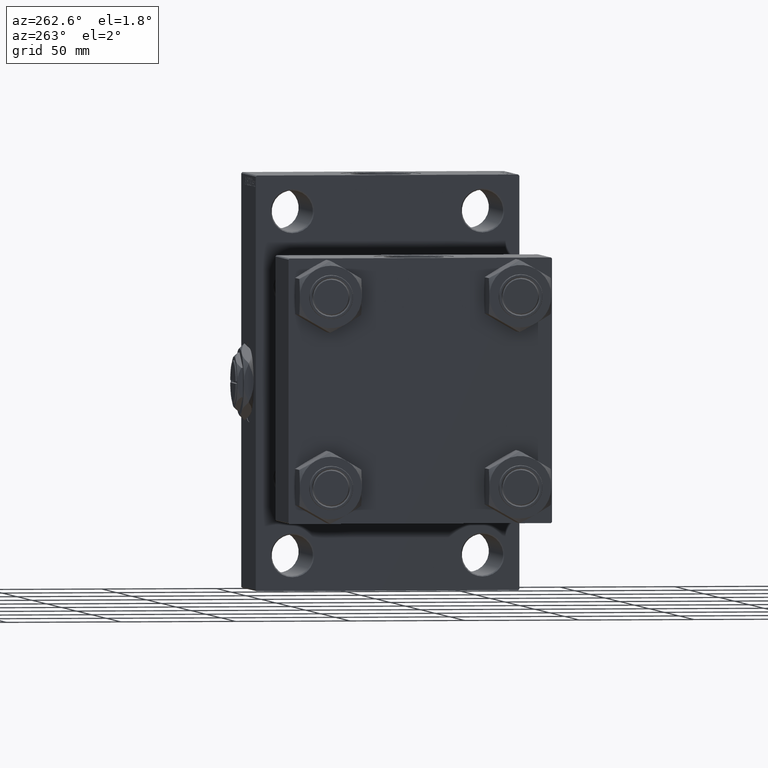
[diagram: clean part render]
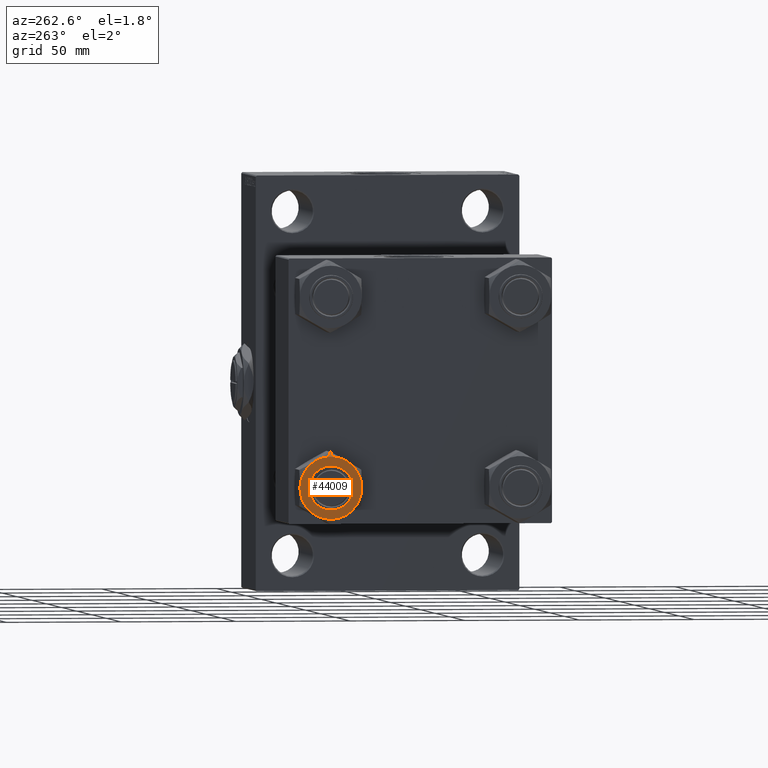
[diagram: same view with one face highlighted and labeled with its STEP entity id]
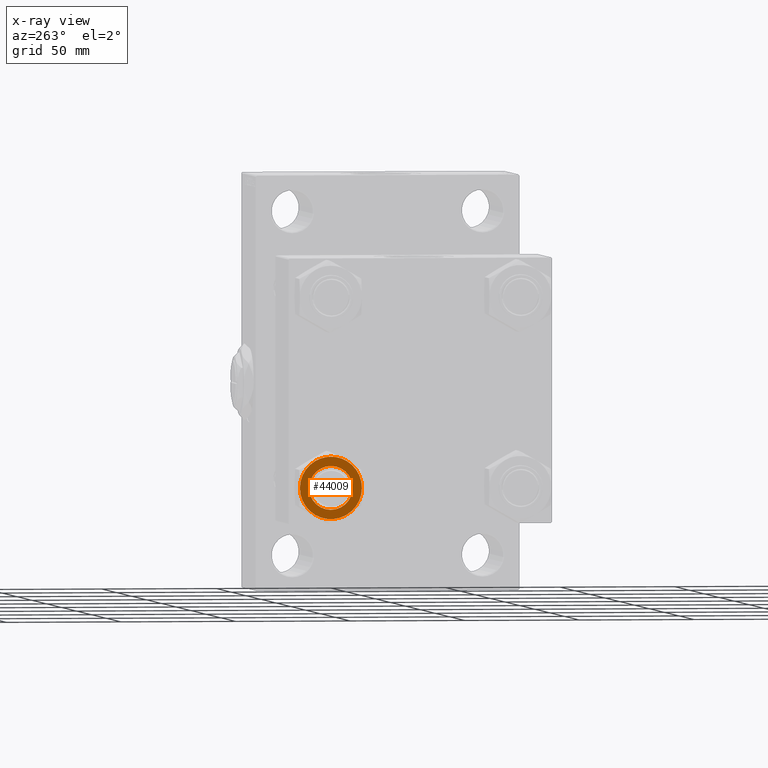
[diagram: x-ray of the same camera — body ghosted, the highlighted face saturated]
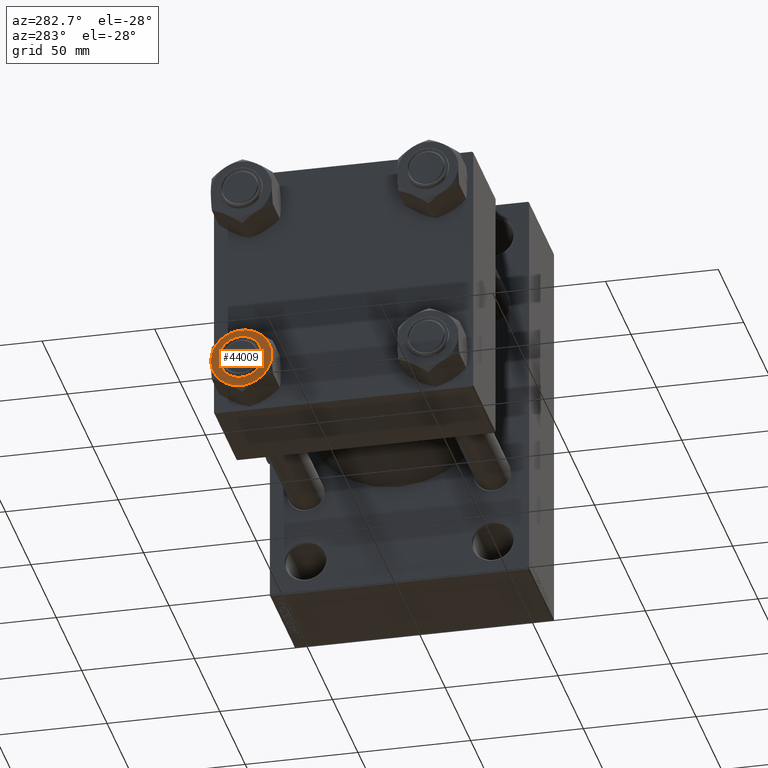
[diagram: same view with one face highlighted and labeled with its STEP entity id]
A machine part, auxiliary view. The second image highlights one B-rep face of the part: STEP entity #44009.
The next image is the same camera in x-ray: the body ghosted, the highlighted face saturated — about 0% of this face is hidden behind the body in this view.
A second angle (auxiliary view) of the same face is appended — the face is thin or edge-on in the first view.
In plain terms, the highlighted planar face has unit normal (1, 0, 0).
Its self-contained STEP definition (entity closure, byte-faithful):
#247 = DIRECTION ( 'NONE',  ( 0.000000000000000000, -0.000000000000000000, -1.000000000000000000 ) ) ;
#611 = AXIS2_PLACEMENT_3D ( 'NONE', #14245, #36512, #39745 ) ;
#1182 = DIRECTION ( 'NONE',  ( -1.000000000000000000, 0.000000000000000000, 0.000000000000000000 ) ) ;
#2214 = VERTEX_POINT ( 'NONE', #39999 ) ;
#2771 = CARTESIAN_POINT ( 'NONE',  ( 0.000000000000000000, 0.000000000000000000, 0.000000000000000000 ) ) ;
#3291 = VERTEX_POINT ( 'NONE', #33506 ) ;
#4153 = AXIS2_PLACEMENT_3D ( 'NONE', #14942, #18452, #41176 ) ;
#4254 = DIRECTION ( 'NONE',  ( -1.000000000000000000, 0.000000000000000000, 0.000000000000000000 ) ) ;
#5525 = AXIS2_PLACEMENT_3D ( 'NONE', #16196, #27691, #16443 ) ;
#6116 = AXIS2_PLACEMENT_3D ( 'NONE', #16524, #20526, #31528 ) ;
#6262 = CARTESIAN_POINT ( 'NONE',  ( 11.71500000000000696, 6.763658403556468635, 0.000000000000000000 ) ) ;
#6636 = CARTESIAN_POINT ( 'NONE',  ( 0.000000000000000000, 0.000000000000000000, 0.000000000000000000 ) ) ;
#8349 = CIRCLE ( 'NONE', #15574, 9.500000000000000000 ) ;
#8611 = VERTEX_POINT ( 'NONE', #22856 ) ;
#9236 = CARTESIAN_POINT ( 'NONE',  ( 0.000000000000000000, 13.52731680711293905, 0.000000000000000000 ) ) ;
#9273 = VERTEX_POINT ( 'NONE', #19964 ) ;
#9634 = CARTESIAN_POINT ( 'NONE',  ( -9.500000000000000000, 0.000000000000000000, 0.000000000000000000 ) ) ;
#10802 = VERTEX_POINT ( 'NONE', #9236 ) ;
#11594 = CARTESIAN_POINT ( 'NONE',  ( -11.71500000000000519, 6.763658403556469523, 0.000000000000000000 ) ) ;
#11914 = CIRCLE ( 'NONE', #5525, 13.52731680711294082 ) ;
#12414 = DIRECTION ( 'NONE',  ( 0.000000000000000000, 0.000000000000000000, 1.000000000000000000 ) ) ;
#13262 = AXIS2_PLACEMENT_3D ( 'NONE', #23531, #247, #4254 ) ;
#14089 = EDGE_CURVE ( 'NONE', #8611, #45794, #34674, .T. ) ;
#14245 = CARTESIAN_POINT ( 'NONE',  ( 0.000000000000000000, 0.000000000000000000, 0.000000000000000000 ) ) ;
#14815 = VERTEX_POINT ( 'NONE', #6262 ) ;
#14942 = CARTESIAN_POINT ( 'NONE',  ( 0.000000000000000000, 0.000000000000000000, 0.000000000000000000 ) ) ;
#15059 = EDGE_CURVE ( 'NONE', #45794, #8611, #8349, .T. ) ;
#15574 = AXIS2_PLACEMENT_3D ( 'NONE', #6636, #40882, #29901 ) ;
#15708 = CARTESIAN_POINT ( 'NONE',  ( 0.000000000000000000, 0.000000000000000000, 0.000000000000000000 ) ) ;
#15924 = CIRCLE ( 'NONE', #36662, 13.52731680711294082 ) ;
#16196 = CARTESIAN_POINT ( 'NONE',  ( 0.000000000000000000, 0.000000000000000000, 0.000000000000000000 ) ) ;
#16424 = DIRECTION ( 'NONE',  ( 1.000000000000000000, 0.000000000000000000, 0.000000000000000000 ) ) ;
#16443 = DIRECTION ( 'NONE',  ( -1.000000000000000000, 0.000000000000000000, 0.000000000000000000 ) ) ;
#16524 = CARTESIAN_POINT ( 'NONE',  ( 0.000000000000000000, 0.000000000000000000, 0.000000000000000000 ) ) ;
#16667 = EDGE_LOOP ( 'NONE', ( #46084, #31289, #37314, #17039, #18866, #34573, #23579 ) ) ;
#17039 = ORIENTED_EDGE ( 'NONE', *, *, #17163, .F. ) ;
#17163 = EDGE_CURVE ( 'NONE', #27207, #9273, #49208, .T. ) ;
#17256 = EDGE_CURVE ( 'NONE', #14815, #10802, #22198, .T. ) ;
#17379 = AXIS2_PLACEMENT_3D ( 'NONE', #33351, #48816, #37102 ) ;
#18330 = AXIS2_PLACEMENT_3D ( 'NONE', #15708, #38696, #1182 ) ;
#18338 = PLANE ( 'NONE',  #17379 ) ;
#18452 = DIRECTION ( 'NONE',  ( 0.000000000000000000, -0.000000000000000000, -1.000000000000000000 ) ) ;
#18866 = ORIENTED_EDGE ( 'NONE', *, *, #49250, .F. ) ;
#19280 = EDGE_CURVE ( 'NONE', #45833, #10802, #34821, .T. ) ;
#19964 = CARTESIAN_POINT ( 'NONE',  ( 1.502314598737159031E-15, -13.52731680711294082, 0.000000000000000000 ) ) ;
#20526 = DIRECTION ( 'NONE',  ( 0.000000000000000000, -0.000000000000000000, -1.000000000000000000 ) ) ;
#21131 = ORIENTED_EDGE ( 'NONE', *, *, #15059, .F. ) ;
#22198 = CIRCLE ( 'NONE', #611, 13.52731680711293905 ) ;
#22280 = DIRECTION ( 'NONE',  ( -1.000000000000000000, 0.000000000000000000, 0.000000000000000000 ) ) ;
#22466 = EDGE_LOOP ( 'NONE', ( #21131, #33491 ) ) ;
#22856 = CARTESIAN_POINT ( 'NONE',  ( 9.500000000000000000, 1.163414459189985485E-15, 0.000000000000000000 ) ) ;
#23531 = CARTESIAN_POINT ( 'NONE',  ( 0.000000000000000000, 0.000000000000000000, 0.000000000000000000 ) ) ;
#23579 = ORIENTED_EDGE ( 'NONE', *, *, #17256, .T. ) ;
#27036 = EDGE_CURVE ( 'NONE', #2214, #45833, #11914, .T. ) ;
#27207 = VERTEX_POINT ( 'NONE', #45581 ) ;
#27670 = CARTESIAN_POINT ( 'NONE',  ( 0.000000000000000000, 0.000000000000000000, 0.000000000000000000 ) ) ;
#27691 = DIRECTION ( 'NONE',  ( 0.000000000000000000, -0.000000000000000000, -1.000000000000000000 ) ) ;
#29548 = EDGE_CURVE ( 'NONE', #9273, #2214, #15924, .T. ) ;
#29901 = DIRECTION ( 'NONE',  ( 1.000000000000000000, 0.000000000000000000, 0.000000000000000000 ) ) ;
#31289 = ORIENTED_EDGE ( 'NONE', *, *, #27036, .F. ) ;
#31528 = DIRECTION ( 'NONE',  ( -1.000000000000000000, 0.000000000000000000, 0.000000000000000000 ) ) ;
#32279 = AXIS2_PLACEMENT_3D ( 'NONE', #27670, #12414, #16424 ) ;
#32859 = FACE_BOUND ( 'NONE', #22466, .T. ) ;
#33351 = CARTESIAN_POINT ( 'NONE',  ( 0.000000000000000000, 0.000000000000000000, 0.000000000000000000 ) ) ;
#33491 = ORIENTED_EDGE ( 'NONE', *, *, #14089, .F. ) ;
#33506 = CARTESIAN_POINT ( 'NONE',  ( 13.52731680711294082, 0.000000000000000000, 0.000000000000000000 ) ) ;
#34573 = ORIENTED_EDGE ( 'NONE', *, *, #36321, .F. ) ;
#34674 = CIRCLE ( 'NONE', #32279, 9.500000000000000000 ) ;
#34821 = CIRCLE ( 'NONE', #13262, 13.52731680711294082 ) ;
#35904 = CIRCLE ( 'NONE', #18330, 13.52731680711294082 ) ;
#36321 = EDGE_CURVE ( 'NONE', #14815, #3291, #36910, .T. ) ;
#36512 = DIRECTION ( 'NONE',  ( 0.000000000000000000, 0.000000000000000000, 1.000000000000000000 ) ) ;
#36662 = AXIS2_PLACEMENT_3D ( 'NONE', #2771, #49001, #22280 ) ;
#36910 = CIRCLE ( 'NONE', #4153, 13.52731680711294082 ) ;
#37102 = DIRECTION ( 'NONE',  ( -1.000000000000000000, 0.000000000000000000, -0.000000000000000000 ) ) ;
#37314 = ORIENTED_EDGE ( 'NONE', *, *, #29548, .F. ) ;
#37332 = FACE_OUTER_BOUND ( 'NONE', #16667, .T. ) ;
#38696 = DIRECTION ( 'NONE',  ( 0.000000000000000000, -0.000000000000000000, -1.000000000000000000 ) ) ;
#39745 = DIRECTION ( 'NONE',  ( 1.000000000000000000, 0.000000000000000000, 0.000000000000000000 ) ) ;
#39999 = CARTESIAN_POINT ( 'NONE',  ( -11.71500000000000874, -6.763658403556465082, 0.000000000000000000 ) ) ;
#40882 = DIRECTION ( 'NONE',  ( 0.000000000000000000, 0.000000000000000000, 1.000000000000000000 ) ) ;
#41176 = DIRECTION ( 'NONE',  ( -1.000000000000000000, 0.000000000000000000, 0.000000000000000000 ) ) ;
#44009 = ADVANCED_FACE ( 'NONE', ( #32859, #37332 ), #18338, .F. ) ;
#45581 = CARTESIAN_POINT ( 'NONE',  ( 11.71500000000000519, -6.763658403556470411, 0.000000000000000000 ) ) ;
#45794 = VERTEX_POINT ( 'NONE', #9634 ) ;
#45833 = VERTEX_POINT ( 'NONE', #11594 ) ;
#46084 = ORIENTED_EDGE ( 'NONE', *, *, #19280, .F. ) ;
#48816 = DIRECTION ( 'NONE',  ( 0.000000000000000000, 0.000000000000000000, -1.000000000000000000 ) ) ;
#49001 = DIRECTION ( 'NONE',  ( 0.000000000000000000, -0.000000000000000000, -1.000000000000000000 ) ) ;
#49208 = CIRCLE ( 'NONE', #6116, 13.52731680711294082 ) ;
#49250 = EDGE_CURVE ( 'NONE', #3291, #27207, #35904, .T. ) ;